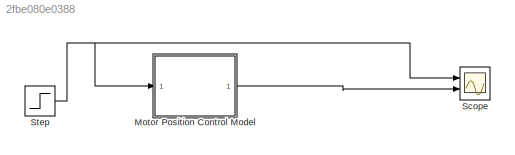
MODEL slx_2fbe080e0388
KIND model
CONFIG AbsTol = auto
CONFIG EnableMultiTasking = off
CONFIG FixedStep = 0.1
CONFIG MaxStep = auto
CONFIG MinStep = auto
CONFIG PreLoadFcn = clc;\nclear all;\nclose all;\nJ = 3.2284E-6;\nb = 3.5077E-6;\nK = 0.0274;\nR = 4;\nL = 2.75E-6;
CONFIG RelTol = 1e-3
CONFIG SampleTimeConstraint = Unconstrained
CONFIG SolverName = ode14x
CONFIG StartTime = 0.0
CONFIG StopTime = 10
BLOCK [ModelReference] Motor Position Control Model
  ModelNameDialog = Motor_Position_Control_Model
  ModelReferenceVersion = 1.21
  Ports = [1, 1]
BLOCK [Scope] Scope
  Floating = off
  NumInputPorts = 2
  Ports = [2]
  ScopeSpecificationString = Simulink.scopes.TimeScopeBlockCfg('CurrentConfiguration', extmgr.ConfigurationSet(extmgr.Configuration('Core','General UI',true),extmgr.Configuration('Core','Source UI',true),extmgr.Configuration('Sources','WiredSimulink',true),extmgr.Configuration('Visuals','Time Domain',true,'SerializedDisplays',{struct('MinYLimReal','0.9','MaxYLimReal','1.1','YLabelReal','','MinYLimMag','0.9','MaxYLimMag','1.1'...<+2001ch>
BLOCK [Step] Step
  SampleTime = 0
  Time = 0
LINE Motor Position Control Model:1 -> Scope:2
NET Step:1 -> Motor Position Control Model:1, Scope:1
note: NET lines group one-source signal fan-out (src -> all destinations, sorted); 1:1 wires keep LINE
